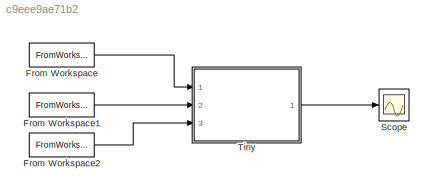
MODEL slx_c9eee9ae71b2
KIND model
CONFIG AbsTol = auto
CONFIG EnableMultiTasking = on
CONFIG FixedStep = 0.1
CONFIG MaxStep = auto
CONFIG MinStep = auto
CONFIG RelTol = 1e-3
CONFIG SampleTimeConstraint = Unconstrained
CONFIG Solver = ode3
CONFIG SolverName = ode3
CONFIG StartTime = 0.0
CONFIG StopTime = SimTime
BLOCK [FromWorkspace] From Workspace
  SampleTime = 0
  VariableName = Val1
  ZeroCross = on
BLOCK [FromWorkspace] From Workspace1
  SampleTime = 0
  VariableName = Val2
  ZeroCross = on
BLOCK [FromWorkspace] From Workspace2
  SampleTime = 0
  VariableName = Val3
  ZeroCross = on
BLOCK [Scope] Scope
  NumInputPorts = 1
  Ports = [1]
  ScopeSpecificationString = Simulink.scopes.TimeScopeBlockCfg('CurrentConfiguration', extmgr.ConfigurationSet(extmgr.Configuration('Core','General UI',true),extmgr.Configuration('Core','Source UI',true),extmgr.Configuration('Sources','WiredSimulink',true,'DataLoggingSaveFormat','StructureWithTime','DataLoggingDecimation','1','DataLoggingDecimateData',true),extmgr.Configuration('Visuals','Time Domain',true,'DisplayPropertyDef...<+856ch>
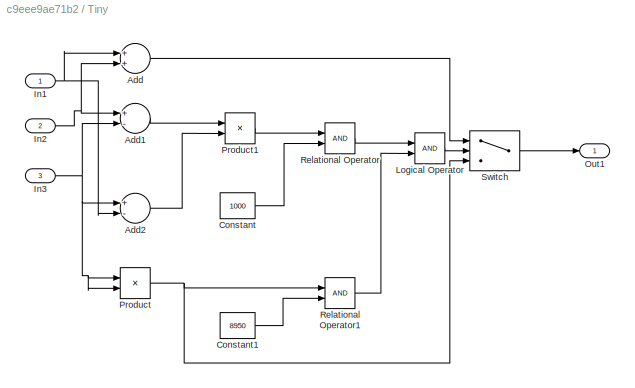
BLOCK [SubSystem] Tiny
  Ports = [3, 1]
  RequestExecContextInheritance = off
  Variant = off
BLOCK [Sum] Tiny/Add
  InputSameDT = off
  OutDataTypeStr = Inherit: Inherit via internal rule
  Ports = [2, 1]
  SaturateOnIntegerOverflow = off
BLOCK [Sum] Tiny/Add1
  InputSameDT = off
  Inputs = +-
  OutDataTypeStr = Inherit: Inherit via internal rule
  Ports = [2, 1]
  SaturateOnIntegerOverflow = off
BLOCK [Sum] Tiny/Add2
  InputSameDT = off
  Inputs = +-
  OutDataTypeStr = Inherit: Inherit via internal rule
  Ports = [2, 1]
  SaturateOnIntegerOverflow = off
BLOCK [Constant] Tiny/Constant
  Value = 1000
BLOCK [Constant] Tiny/Constant1
  Value = 8950
BLOCK [Inport] Tiny/In1
  IconDisplay = Port number
BLOCK [Inport] Tiny/In2
  IconDisplay = Port number
  Port = 2
BLOCK [Inport] Tiny/In3
  IconDisplay = Port number
  Port = 3
BLOCK [Logic] Tiny/Logical Operator
  AllPortsSameDT = off
  OutDataTypeStr = boolean
  Ports = [2, 1]
BLOCK [Outport] Tiny/Out1
  IconDisplay = Port number
BLOCK [Product] Tiny/Product
  InputSameDT = off
  OutDataTypeStr = Inherit: Inherit via internal rule
  Ports = [2, 1]
  RndMeth = Floor
  SaturateOnIntegerOverflow = off
BLOCK [Product] Tiny/Product1
  InputSameDT = off
  OutDataTypeStr = Inherit: Inherit via internal rule
  Ports = [2, 1]
  RndMeth = Floor
  SaturateOnIntegerOverflow = off
BLOCK [RelationalOperator] Tiny/Relational Operator
  InputSameDT = off
  OutDataTypeStr = boolean
  Ports = [2, 1]
BLOCK [RelationalOperator] Tiny/Relational Operator1
  InputSameDT = off
  OutDataTypeStr = boolean
  Ports = [2, 1]
BLOCK [Switch] Tiny/Switch
  InputSameDT = off
  SaturateOnIntegerOverflow = off
  Threshold = 1
LINE From Workspace1:1 -> Tiny:2
LINE From Workspace2:1 -> Tiny:3
LINE From Workspace:1 -> Tiny:1
LINE Tiny/Add1:1 -> Tiny/Product1:1
LINE Tiny/Add2:1 -> Tiny/Product1:2
LINE Tiny/Add:1 -> Tiny/Switch:1
LINE Tiny/Constant1:1 -> Tiny/Relational Operator1:2
LINE Tiny/Constant:1 -> Tiny/Relational Operator:2
NET Tiny/In1:1 -> Tiny/Add2:2, Tiny/Add:1
NET Tiny/In2:1 -> Tiny/Add1:1, Tiny/Add:2
NET Tiny/In3:1 -> Tiny/Add1:2, Tiny/Add2:1, Tiny/Product:1, Tiny/Product:2
LINE Tiny/Logical Operator:1 -> Tiny/Switch:2
LINE Tiny/Product1:1 -> Tiny/Relational Operator:1
NET Tiny/Product:1 -> Tiny/Relational Operator1:1, Tiny/Switch:3
LINE Tiny/Relational Operator1:1 -> Tiny/Logical Operator:2
LINE Tiny/Relational Operator:1 -> Tiny/Logical Operator:1
LINE Tiny/Switch:1 -> Tiny/Out1:1
LINE Tiny:1 -> Scope:1
note: NET lines group one-source signal fan-out (src -> all destinations, sorted); 1:1 wires keep LINE
